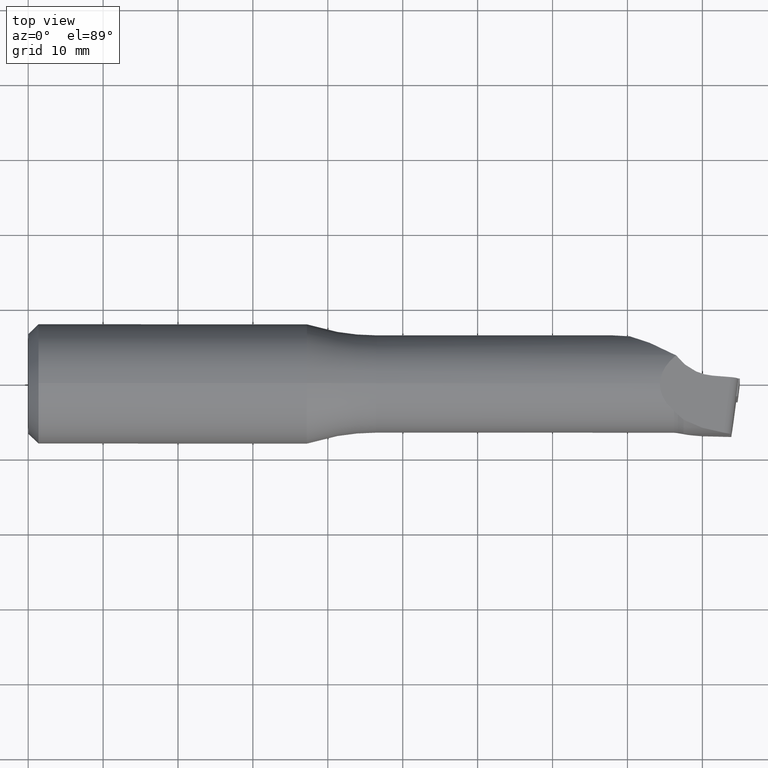
[diagram: clean part render]
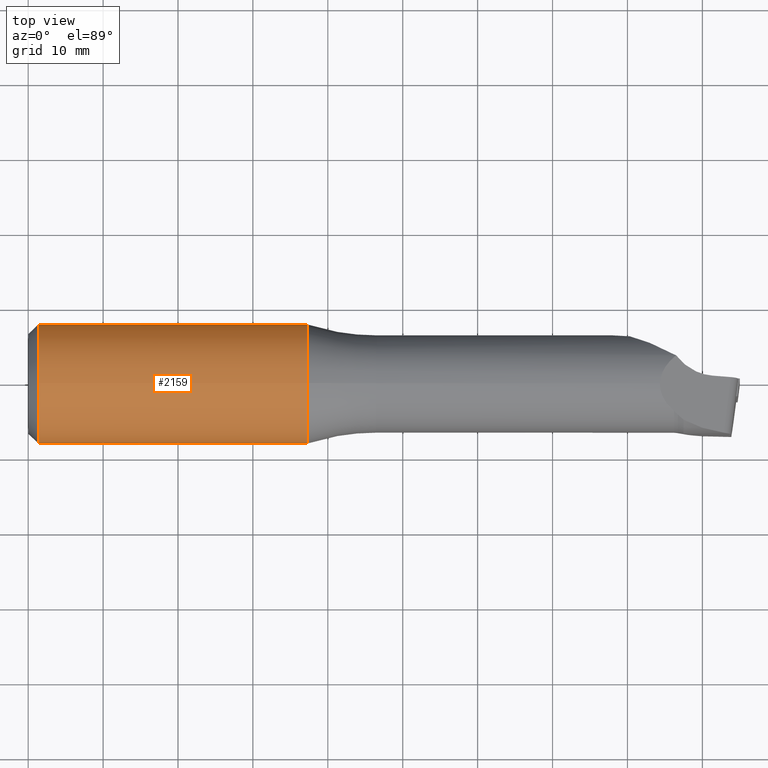
[diagram: same view with one face highlighted and labeled with its STEP entity id]
A machine part, top view. The second image highlights one B-rep face of the part: STEP entity #2159.
In plain terms, the highlighted cylindrical surface (bore or boss wall) has radius 8 mm, axis along (-1, -0, -0).
Its self-contained STEP definition (entity closure, byte-faithful):
#27 = AXIS2_PLACEMENT_3D ( 'NONE', #3396, #379, #113 ) ;
#57 = EDGE_CURVE ( 'NONE', #296, #1604, #292, .T. ) ;
#74 = CARTESIAN_POINT ( 'NONE',  ( 16.00000000000000400, 5.055689863905815400, -6.199999999999999300 ) ) ;
#98 = CARTESIAN_POINT ( 'NONE',  ( 1.375000000000004700, 5.055689863905843900, -6.199999999999999300 ) ) ;
#113 = DIRECTION ( 'NONE',  ( 0.0000000000000000000, 0.0000000000000000000, 1.000000000000000000 ) ) ;
#165 = EDGE_CURVE ( 'NONE', #2148, #1660, #3294, .T. ) ;
#192 =( BOUNDED_CURVE ( )  B_SPLINE_CURVE ( 3, ( #2220, #284, #860, #897 ),
 .UNSPECIFIED., .F., .F. ) 
 B_SPLINE_CURVE_WITH_KNOTS ( ( 4, 4 ),
 ( 2.457511421794463600, 3.825673885385122700 ),
 .UNSPECIFIED. ) 
 CURVE ( )  GEOMETRIC_REPRESENTATION_ITEM ( )  RATIONAL_B_SPLINE_CURVE ( ( 1.000000000000000000, 0.8499999999999998700, 0.8499999999999998700, 1.000000000000000000 ) ) 
 REPRESENTATION_ITEM ( '' )  );
#238 = DIRECTION ( 'NONE',  ( -1.000000000000000000, -0.0000000000000000000, -0.0000000000000000000 ) ) ;
#281 = EDGE_CURVE ( 'NONE', #534, #296, #1524, .T. ) ;
#284 = CARTESIAN_POINT ( 'NONE',  ( 26.50588235294121400, -1.982623476041498500, -8.705882352941179300 ) ) ;
#292 = LINE ( 'NONE', #3231, #1420 ) ;
#296 = VERTEX_POINT ( 'NONE', #1215 ) ;
#318 = CARTESIAN_POINT ( 'NONE',  ( -3.175455607189903200, 5.055689863905816300, -6.199999999999999300 ) ) ;
#373 = VECTOR ( 'NONE', #238, 1000.000000000000000 ) ;
#379 = DIRECTION ( 'NONE',  ( -1.000000000000000000, -0.0000000000000000000, -0.0000000000000000000 ) ) ;
#382 = ORIENTED_EDGE ( 'NONE', *, *, #2409, .T. ) ;
#416 = CARTESIAN_POINT ( 'NONE',  ( 9.499999999999998200, -5.055689863905816300, -6.199999999999999300 ) ) ;
#451 = CARTESIAN_POINT ( 'NONE',  ( 9.499999999999998200, 5.055689863905817200, -6.199999999999999300 ) ) ;
#473 = DIRECTION ( 'NONE',  ( -1.000000000000000000, -0.0000000000000000000, -0.0000000000000000000 ) ) ;
#534 = VERTEX_POINT ( 'NONE', #722 ) ;
#722 = CARTESIAN_POINT ( 'NONE',  ( 16.00000000000000400, 5.055689863905815400, -6.199999999999999300 ) ) ;
#855 = DIRECTION ( 'NONE',  ( 1.000000000000000000, 0.0000000000000000000, 0.0000000000000000000 ) ) ;
#860 = CARTESIAN_POINT ( 'NONE',  ( 26.50588235294121400, 1.982623476041496000, -8.705882352941179300 ) ) ;
#897 = CARTESIAN_POINT ( 'NONE',  ( 23.99999999999999600, 5.055689863905817200, -6.199999999999999300 ) ) ;
#925 = CARTESIAN_POINT ( 'NONE',  ( 12.00588235294121600, -1.982623476041498500, -8.705882352941179300 ) ) ;
#939 = ORIENTED_EDGE ( 'NONE', *, *, #165, .T. ) ;
#941 = EDGE_CURVE ( 'NONE', #1604, #2250, #192, .T. ) ;
#1022 = DIRECTION ( 'NONE',  ( 1.000000000000000000, 0.0000000000000000000, 0.0000000000000000000 ) ) ;
#1027 = DIRECTION ( 'NONE',  ( 0.0000000000000000000, 0.0000000000000000000, 1.000000000000000000 ) ) ;
#1068 = ORIENTED_EDGE ( 'NONE', *, *, #2440, .T. ) ;
#1215 = CARTESIAN_POINT ( 'NONE',  ( 16.00000000000000400, -5.055689863905819900, -6.199999999999999300 ) ) ;
#1418 = AXIS2_PLACEMENT_3D ( 'NONE', #2985, #473, #2382 ) ;
#1420 = VECTOR ( 'NONE', #1022, 1000.000000000000000 ) ;
#1424 = EDGE_LOOP ( 'NONE', ( #2656 ) ) ;
#1524 =( BOUNDED_CURVE ( )  B_SPLINE_CURVE ( 3, ( #74, #2024, #2839, #1986 ),
 .UNSPECIFIED., .F., .F. ) 
 B_SPLINE_CURVE_WITH_KNOTS ( ( 4, 4 ),
 ( 5.599104075384256700, 6.967266538974915800 ),
 .UNSPECIFIED. ) 
 CURVE ( )  GEOMETRIC_REPRESENTATION_ITEM ( )  RATIONAL_B_SPLINE_CURVE ( ( 1.000000000000000000, 0.8499999999999998700, 0.8499999999999998700, 1.000000000000000000 ) ) 
 REPRESENTATION_ITEM ( '' )  );
#1529 = LINE ( 'NONE', #1976, #2413 ) ;
#1572 = EDGE_LOOP ( 'NONE', ( #2509, #939, #2283, #1068 ) ) ;
#1573 = LINE ( 'NONE', #318, #2165 ) ;
#1604 = VERTEX_POINT ( 'NONE', #2272 ) ;
#1634 = EDGE_CURVE ( 'NONE', #2061, #2061, #3141, .T. ) ;
#1635 = CARTESIAN_POINT ( 'NONE',  ( -3.175455607189903200, 5.055689863905816300, -6.199999999999999300 ) ) ;
#1643 = AXIS2_PLACEMENT_3D ( 'NONE', #3521, #2377, #1027 ) ;
#1660 = VERTEX_POINT ( 'NONE', #98 ) ;
#1743 = CARTESIAN_POINT ( 'NONE',  ( 12.00588235294121200, 1.982623476041496000, -8.705882352941179300 ) ) ;
#1976 = CARTESIAN_POINT ( 'NONE',  ( -3.175455607189903200, -5.055689863905816300, -6.199999999999999300 ) ) ;
#1986 = CARTESIAN_POINT ( 'NONE',  ( 16.00000000000000400, -5.055689863905819900, -6.199999999999999300 ) ) ;
#2024 = CARTESIAN_POINT ( 'NONE',  ( 13.49411764705878800, 1.982623476041499400, -8.705882352941179300 ) ) ;
#2032 = FACE_OUTER_BOUND ( 'NONE', #1572, .T. ) ;
#2061 = VERTEX_POINT ( 'NONE', #3394 ) ;
#2073 = CIRCLE ( 'NONE', #1418, 8.000000000000000000 ) ;
#2095 = ORIENTED_EDGE ( 'NONE', *, *, #281, .T. ) ;
#2148 = VERTEX_POINT ( 'NONE', #451 ) ;
#2159 = ADVANCED_FACE ( 'NONE', ( #3539, #2032, #2795 ), #2488, .T. ) ;
#2165 = VECTOR ( 'NONE', #2799, 1000.000000000000000 ) ;
#2193 = VERTEX_POINT ( 'NONE', #2910 ) ;
#2202 = CARTESIAN_POINT ( 'NONE',  ( 23.99999999999999600, 5.055689863905817200, -6.199999999999999300 ) ) ;
#2207 = ORIENTED_EDGE ( 'NONE', *, *, #941, .T. ) ;
#2220 = CARTESIAN_POINT ( 'NONE',  ( 23.99999999999999600, -5.055689863905816300, -6.199999999999999300 ) ) ;
#2250 = VERTEX_POINT ( 'NONE', #2202 ) ;
#2272 = CARTESIAN_POINT ( 'NONE',  ( 23.99999999999999600, -5.055689863905816300, -6.199999999999999300 ) ) ;
#2283 = ORIENTED_EDGE ( 'NONE', *, *, #2748, .F. ) ;
#2377 = DIRECTION ( 'NONE',  ( -1.000000000000000000, -0.0000000000000000000, -0.0000000000000000000 ) ) ;
#2382 = DIRECTION ( 'NONE',  ( 0.0000000000000000000, 0.0000000000000000000, 1.000000000000000000 ) ) ;
#2409 = EDGE_CURVE ( 'NONE', #2250, #534, #1573, .T. ) ;
#2413 = VECTOR ( 'NONE', #855, 1000.000000000000000 ) ;
#2440 = EDGE_CURVE ( 'NONE', #2193, #2943, #1529, .T. ) ;
#2488 = CYLINDRICAL_SURFACE ( 'NONE', #1643, 8.000000000000000000 ) ;
#2509 = ORIENTED_EDGE ( 'NONE', *, *, #3550, .T. ) ;
#2656 = ORIENTED_EDGE ( 'NONE', *, *, #1634, .T. ) ;
#2748 = EDGE_CURVE ( 'NONE', #2193, #1660, #2073, .T. ) ;
#2795 = FACE_OUTER_BOUND ( 'NONE', #1424, .T. ) ;
#2799 = DIRECTION ( 'NONE',  ( -1.000000000000000000, -0.0000000000000000000, -0.0000000000000000000 ) ) ;
#2804 = CARTESIAN_POINT ( 'NONE',  ( 9.499999999999998200, -5.055689863905816300, -6.199999999999999300 ) ) ;
#2839 = CARTESIAN_POINT ( 'NONE',  ( 13.49411764705878800, -1.982623476041497100, -8.705882352941179300 ) ) ;
#2878 = CARTESIAN_POINT ( 'NONE',  ( 9.499999999999998200, 5.055689863905817200, -6.199999999999999300 ) ) ;
#2910 = CARTESIAN_POINT ( 'NONE',  ( 1.374999999999997800, -5.055689863905816300, -6.199999999999999300 ) ) ;
#2943 = VERTEX_POINT ( 'NONE', #2804 ) ;
#2985 = CARTESIAN_POINT ( 'NONE',  ( 1.374999999999997800, 0.0000000000000000000, 0.0000000000000000000 ) ) ;
#3049 = ORIENTED_EDGE ( 'NONE', *, *, #57, .T. ) ;
#3067 =( BOUNDED_CURVE ( )  B_SPLINE_CURVE ( 3, ( #416, #925, #1743, #2878 ),
 .UNSPECIFIED., .F., .T. ) 
 B_SPLINE_CURVE_WITH_KNOTS ( ( 4, 4 ),
 ( 2.457511421794463600, 3.825673885385122700 ),
 .UNSPECIFIED. ) 
 CURVE ( )  GEOMETRIC_REPRESENTATION_ITEM ( )  RATIONAL_B_SPLINE_CURVE ( ( 1.000000000000000000, 0.8499999999999998700, 0.8499999999999998700, 1.000000000000000000 ) ) 
 REPRESENTATION_ITEM ( '' )  );
#3141 = CIRCLE ( 'NONE', #27, 8.000000000000000000 ) ;
#3231 = CARTESIAN_POINT ( 'NONE',  ( -3.175455607189903200, -5.055689863905816300, -6.199999999999999300 ) ) ;
#3256 = EDGE_LOOP ( 'NONE', ( #3049, #2207, #382, #2095 ) ) ;
#3294 = LINE ( 'NONE', #1635, #373 ) ;
#3394 = CARTESIAN_POINT ( 'NONE',  ( 37.20890883695570000, 0.0000000000000000000, 8.000000000000000000 ) ) ;
#3396 = CARTESIAN_POINT ( 'NONE',  ( 37.20890883695570000, 0.0000000000000000000, 0.0000000000000000000 ) ) ;
#3521 = CARTESIAN_POINT ( 'NONE',  ( -3.175455607189903200, 0.0000000000000000000, 0.0000000000000000000 ) ) ;
#3539 = FACE_BOUND ( 'NONE', #3256, .T. ) ;
#3550 = EDGE_CURVE ( 'NONE', #2943, #2148, #3067, .T. ) ;